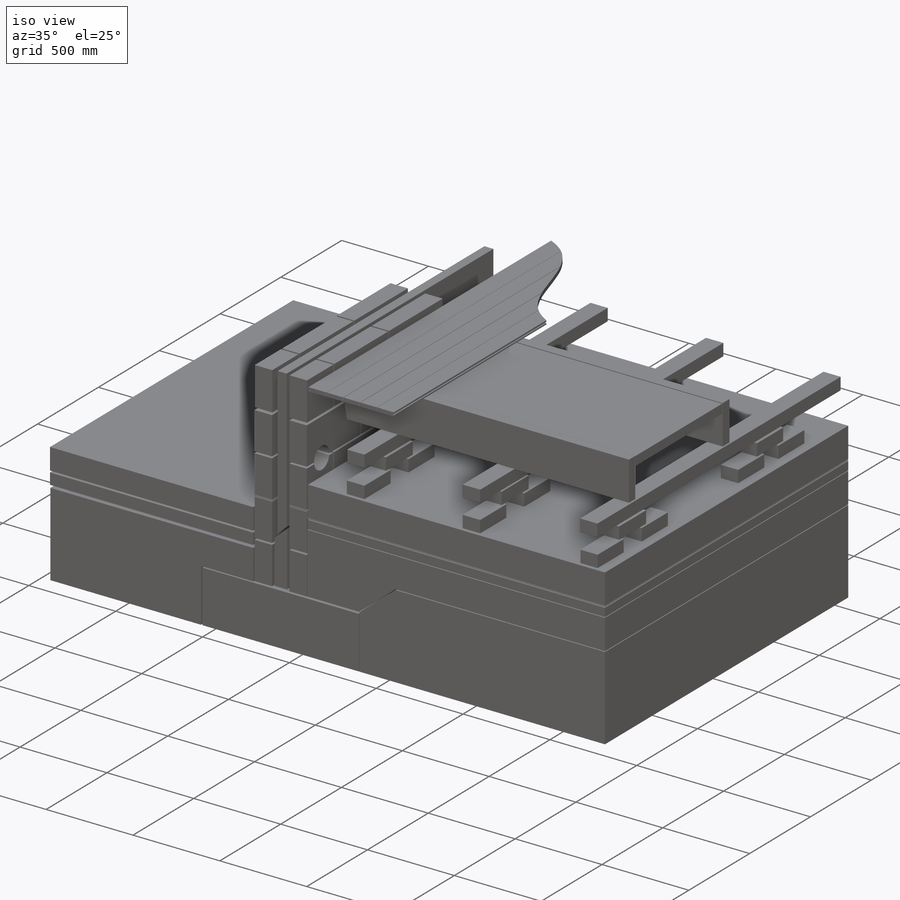
[diagram: iso view]
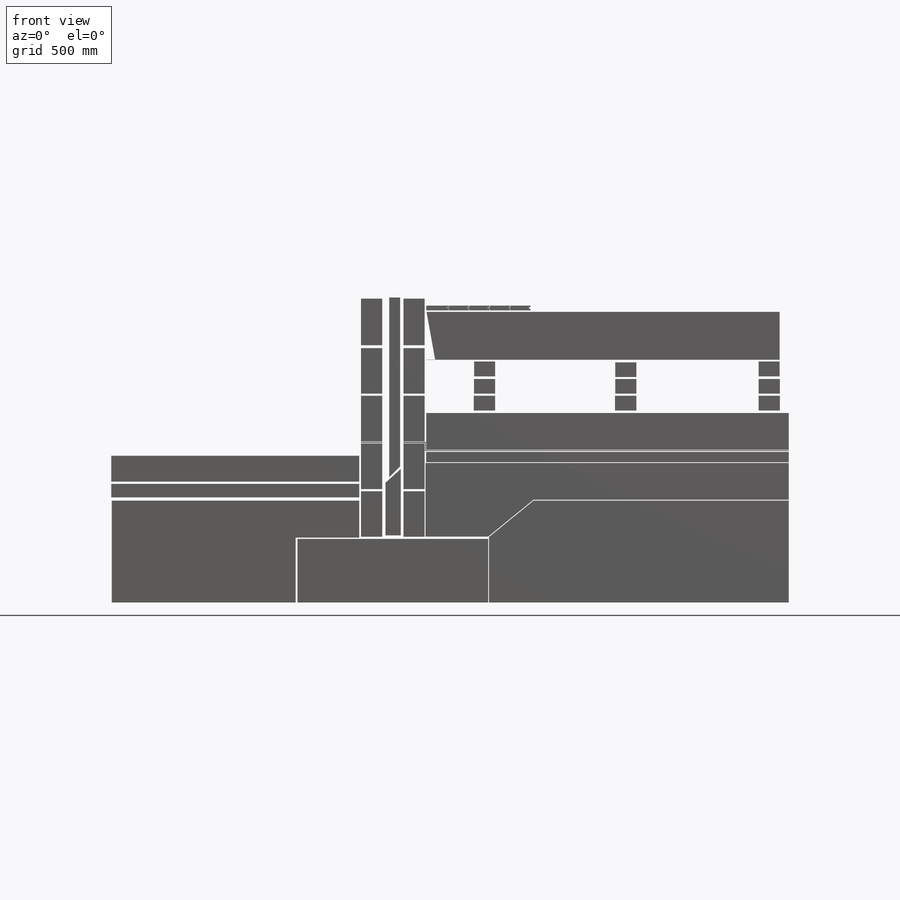
[diagram: front view]
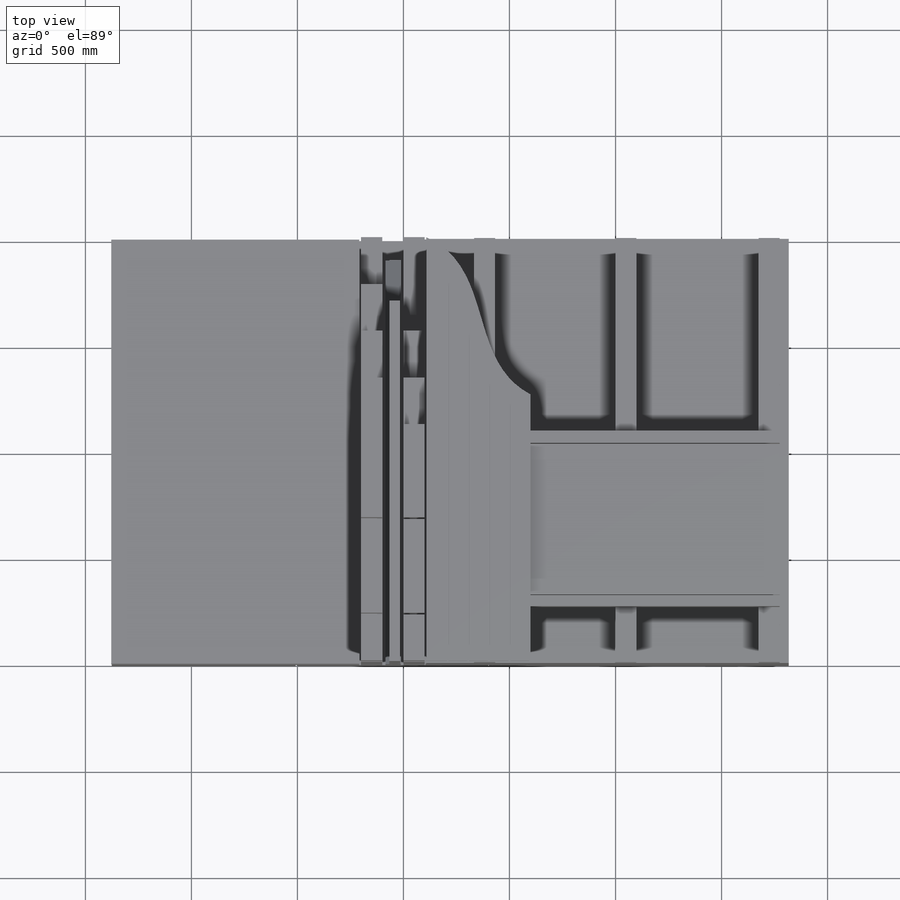
[diagram: top view]
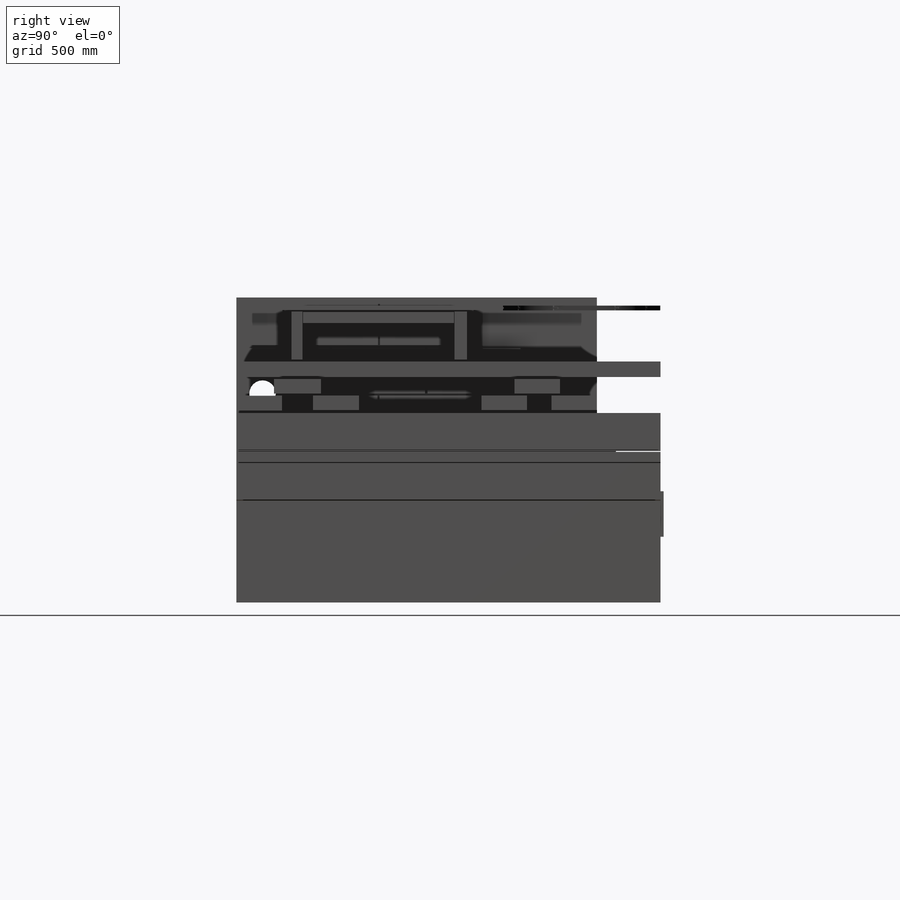
[diagram: right view]
SOLIDWORKS PART (.sldprt)
format: sldprt  version: not decoded by parser v0  size: 1,346,048 bytes
history: native  units: mm
features: sketch x41, extrude x38, cut_extrude x3, material x1 (+15 scaffold rows collapsed)
feature tree (98):
  scaffold x15  (default folders/planes/origin — collapsed)
  material  "Material <not specified>"
  sketch  "Sketch1"  dims[D1=900.0mm D2=300.0mm]
  extrude  "Extrude1"  Depth=2000mm
  sketch  "Sketch2"  dims[D1=100.0mm D2=215.0mm D3=10.0mm D4=50.0mm]
  extrude  "Extrude2"  Depth=215mm
  sketch  "Sketch4"  dims[D1=100.0mm D2=215.0mm D3=10.0mm D4=~0.957099mm]
  extrude  "Extrude3"  Depth=440mm
  sketch  "Sketch5"  dims[D1=440.0mm D2=215.0mm D3=10.0mm D4=10.0mm D5=440.0mm D6=215.0mm D7=10.0mm D8=10.0mm D9=215.0mm D10=440.0mm D11=10.0mm D12=10.0mm D13=440.0mm D14=215.0mm D15=10.0mm D16=10.0mm D17=215.0mm D18=440.0mm D19=10.0mm D20=10.0mm D21=440.0mm D22=10.0mm D23=215.0mm D24=10.0mm D25=440.0mm D26=215.0mm D27=10.0mm D28=10.0mm]
  extrude  "Extrude4"  Depth=100mm
  sketch  "Sketch8"  dims[D1=215.0mm D2=100.0mm D3=10.0mm]
  extrude  "Extrude5"  Depth=215mm
  sketch  "Sketch9"  dims[D1=440.0mm D2=215.0mm D3=10.0mm D4=10.0mm D5=215.0mm D6=10.0mm D7=10.0mm D8=440.0mm D9=215.0mm D10=10.0mm D11=440.0mm D12=10.0mm D13=215.0mm D14=10.0mm D15=440.0mm D16=440.0mm D17=10.0mm D18=440.0mm D19=10.0mm]
  extrude  "Extrude6"  Depth=100mm
  sketch  "Sketch10"  dims[D1=100.0mm D2=215.0mm D3=10.0mm D4=100.0mm]
  extrude  "Extrude7"  Depth=215mm
  sketch  "Sketch12"
  extrude  "Extrude9"  Depth=100mm
  sketch  "Sketch13"
  extrude  "Extrude10"  Depth=100mm
  sketch  "Sketch14"
  extrude  "Extrude11"  Depth=100mm
  sketch  "Sketch15"  dims[D1=230.0mm]
  extrude  "Extrude12"  Depth=1700mm
  sketch  "Sketch16"
  extrude  "Extrude13"  Depth=1904mm
  sketch  "Sketch17"
  extrude  "Extrude14"  Depth=2000mm
  sketch  "Sketch18"
  extrude  "Extrude15"  Depth=2000mm
  sketch  "Sketch19"
  extrude  "Extrude16"  Depth=2000mm
  sketch  "Sketch20"
  extrude  "Extrude17"  Depth=2000mm
  sketch  "Sketch24"
  extrude  "Extrude20"  Depth=2000mm
  sketch  "Sketch25"
  extrude  "Extrude21"  Depth=2000mm
  sketch  "Sketch28"
  extrude  "Extrude23"  Depth=215mm
  sketch  "Sketch29"
  extrude  "Extrude24"  Depth=100mm
  sketch  "Sketch30"
  extrude  "Extrude25"  Depth=100mm
  sketch  "Sketch31"
  extrude  "Extrude26"  Depth=100mm
  sketch  "Sketch32"
  extrude  "Extrude27"  Depth=100mm
  sketch  "Sketch33"
  extrude  "Extrude28"  Depth=100mm
  sketch  "Sketch34"
  extrude  "Extrude29"  Depth=100mm
  sketch  "Sketch35"
  extrude  "Extrude30"  [1 undecoded]
  sketch  "Sketch36"
  extrude  "Extrude31"  [1 undecoded]
  sketch  "Sketch37"
  extrude  "Extrude32"  [1 undecoded]
  sketch  "Sketch39"  dims[D1=220.0mm D2=440.0mm D3=440.0mm D4=10.0mm D5=10.0mm]
  extrude  "Extrude33"  Depth=100mm
  sketch  "Sketch40"
  extrude  "Extrude34"  Depth=100mm
  sketch  "Sketch41"
  extrude  "Extrude35"  [1 undecoded]
  sketch  "Sketch42"
  extrude  "Extrude36"  [1 undecoded]
  sketch  "Sketch43"
  extrude  "Extrude37"  [1 undecoded]
  sketch  "Sketch44"
  extrude  "Extrude38"  [1 undecoded]
  sketch  "Sketch45"
  extrude  "Extrude39"  Depth=1665mm
  sketch  "Sketch46"
  extrude  "Extrude40"  Depth=1665mm
  sketch  "Sketch47"
  extrude  "Extrude42"  [1 undecoded]
  sketch  "Sketch48"
  cut_extrude  "Extrude43"  Depth=23mm
  sketch  "Sketch49"
  extrude  "Extrude44"  [1 undecoded]
  sketch  "Sketch50"
  cut_extrude  "Extrude46"  Depth=300mm
  sketch  "Sketch51"
  cut_extrude  "Extrude47"  [1 undecoded]
decode coverage: 40 of 82 modeling features carry decoded parameters
note: ~ marks probable driven/reference dimensions
note: 10 parameter values undecoded
summary: no parameter record found for 10 features
note: suppression state not decoded; provenance and decode notes live in map.json
